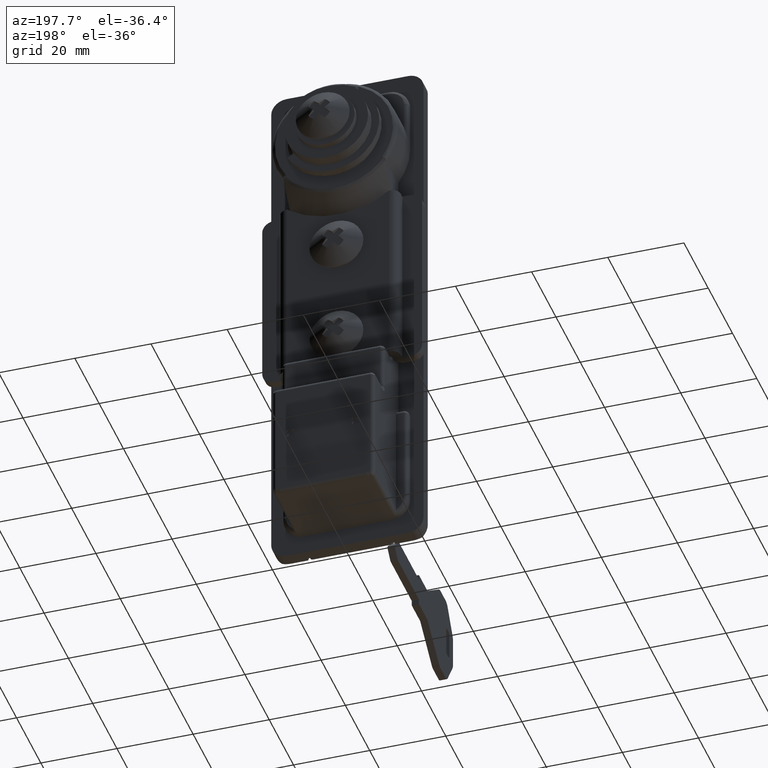
[diagram: clean part render]
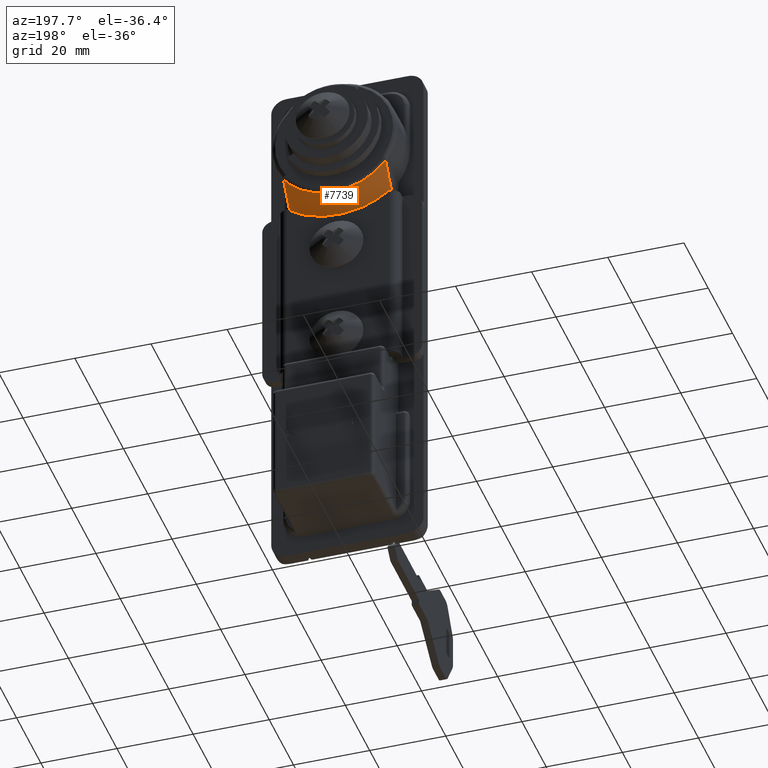
[diagram: same view with one face highlighted and labeled with its STEP entity id]
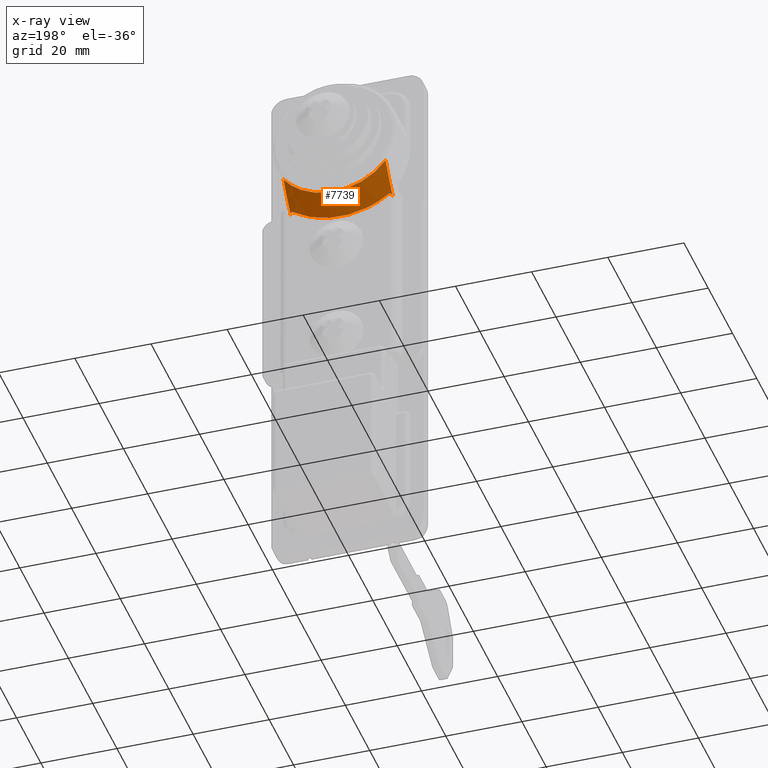
[diagram: x-ray of the same camera — body ghosted, the highlighted face saturated]
A machine part, auxiliary view. The second image highlights one B-rep face of the part: STEP entity #7739.
The next image is the same camera in x-ray: the body ghosted, the highlighted face saturated — about 0% of this face is hidden behind the body in this view.
In plain terms, the highlighted face is a freeform B-spline surface patch.
Its self-contained STEP definition (entity closure, byte-faithful):
#4096=CARTESIAN_POINT('',(5.500000000000000,13.400000000000141,-17.156414347120752));
#4097=VERTEX_POINT('',#4096);
#4103=CARTESIAN_POINT('',(6.500000000000000,12.400000000000199,-16.893358270042100));
#4104=VERTEX_POINT('',#4103);
#4105=CARTESIAN_POINT('',(6.500000000000000,12.400000000000199,-16.893358270042100));
#4106=CARTESIAN_POINT('',(6.499999999999999,12.460573286363759,-16.848896491696930));
#4107=CARTESIAN_POINT('',(6.494592710384143,12.522759479631720,-16.808204778307228));
#4108=CARTESIAN_POINT('',(6.476226226919340,12.619211065464500,-16.754502108410222));
#4109=CARTESIAN_POINT('',(6.468302465190980,12.652129500656590,-16.737736279526459));
#4110=CARTESIAN_POINT('',(6.448728232234273,12.717952340073060,-16.707793012662432));
#4111=CARTESIAN_POINT('',(6.437122398387714,12.750802640241631,-16.694613040432529));
#4112=CARTESIAN_POINT('',(6.409880314441782,12.816387674351430,-16.672278262638262));
#4113=CARTESIAN_POINT('',(6.394131173822889,12.849331025171020,-16.663078042897912));
#4114=CARTESIAN_POINT('',(6.358482375835842,12.914175978204350,-16.649589368036221));
#4115=CARTESIAN_POINT('',(6.319348843506730,12.976861437519510,-16.641195877414582));
#4116=CARTESIAN_POINT('',(6.273234109520970,13.035228425482360,-16.643149565359870));
#4117=CARTESIAN_POINT('',(6.223489226130293,13.091353368647971,-16.650546688825791));
#4118=CARTESIAN_POINT('',(6.197361680185288,13.117636002519459,-16.656905413388010));
#4119=CARTESIAN_POINT('',(6.143556592638629,13.166256913296280,-16.674307040852931));
#4120=CARTESIAN_POINT('',(6.115718375119708,13.188756597899900,-16.685389086905481));
#4121=CARTESIAN_POINT('',(6.058568934195304,13.230208909818851,-16.711877010054341));
#4122=CARTESIAN_POINT('',(6.029886110504806,13.248720230816319,-16.726980176537630));
#4123=CARTESIAN_POINT('',(5.972344611722654,13.282040751938039,-16.760302263052800));
#4124=CARTESIAN_POINT('',(5.943485620495222,13.296845330174760,-16.778524911967221));
#4125=CARTESIAN_POINT('',(5.885613592364966,13.323208101798130,-16.817702673506460));
#4126=CARTESIAN_POINT('',(5.856478321303036,13.334794583558910,-16.838762068288279));
#4127=CARTESIAN_POINT('',(5.770620583416208,13.364590756679130,-16.904254300822419));
#4128=CARTESIAN_POINT('',(5.714909527387732,13.378198053424560,-16.951273150547941));
#4129=CARTESIAN_POINT('',(5.605750181845946,13.395928931061430,-17.050338990717862));
#4130=CARTESIAN_POINT('',(5.552130961846017,13.400000000000500,-17.102603119915919));
#4131=CARTESIAN_POINT('',(5.500000000000000,13.400000000000141,-17.156414347120752));
#4132=B_SPLINE_CURVE_WITH_KNOTS('',3,(#4105,#4106,#4107,#4108,#4109,#4110,#4111,#4112,#4113,#4114,#4115,#4116,#4117,#4118,#4119,#4120,#4121,#4122,#4123,#4124,#4125,#4126,#4127,#4128,#4129,#4130,#4131),.UNSPECIFIED.,.F.,.U.,(4,2,2,2,2,1,2,2,2,2,2,2,2,4),(0.0,0.124999999999999,0.187499999999998,0.249999999999998,0.312499999999997,0.374999999999997,0.437499999999996,0.499999999999996,0.562499999999995,0.624999999999995,0.687499999999994,0.749999999999994,0.874999999999997,1.0),.UNSPECIFIED.);
#4133=EDGE_CURVE('',#4104,#4097,#4132,.T.);
#4403=CARTESIAN_POINT('',(5.500000000000000,-13.400000000000141,-17.156414347120649));
#4404=VERTEX_POINT('',#4403);
#4405=CARTESIAN_POINT('',(6.500000000000000,-12.400000000000141,-16.893358270042100));
#4406=VERTEX_POINT('',#4405);
#4407=CARTESIAN_POINT('',(5.500000000000000,-13.400000000000141,-17.156414347120649));
#4408=CARTESIAN_POINT('',(5.552081475391478,-13.400000000000141,-17.102654201411010));
#4409=CARTESIAN_POINT('',(5.605158161518392,-13.395974995171640,-17.050915183161411));
#4410=CARTESIAN_POINT('',(5.713740600542138,-13.378437215983199,-16.952295703970350));
#4411=CARTESIAN_POINT('',(5.769234808542663,-13.364969271795630,-16.905392209594080));
#4412=CARTESIAN_POINT('',(5.854931568637838,-13.335380591521259,-16.839903074620238));
#4413=CARTESIAN_POINT('',(5.884087572575291,-13.323846319982600,-16.818780850947000));
#4414=CARTESIAN_POINT('',(5.942122794745748,-13.297520317718980,-16.779404594446799));
#4415=CARTESIAN_POINT('',(5.971071612735336,-13.282724613025570,-16.761081657400101));
#4416=CARTESIAN_POINT('',(6.028811376579899,-13.249393745424280,-16.727562028869212));
#4417=CARTESIAN_POINT('',(6.057731717900007,-13.230768706913731,-16.712302474695559));
#4418=CARTESIAN_POINT('',(6.114815969611360,-13.189457178730819,-16.685771035199672));
#4419=CARTESIAN_POINT('',(6.142503716109792,-13.167129181404180,-16.674709488080360));
#4420=CARTESIAN_POINT('',(6.196046295020213,-13.118900383478380,-16.657271590381541));
#4421=CARTESIAN_POINT('',(6.221902217389406,-13.093001588955531,-16.650892804849232));
#4422=CARTESIAN_POINT('',(6.259152152278259,-13.051180860539599,-16.645193750057519));
#4423=CARTESIAN_POINT('',(6.271364966426447,-13.036670154115081,-16.643943809839310));
#4424=CARTESIAN_POINT('',(6.294729451546504,-13.007254391022061,-16.642825517018721));
#4425=CARTESIAN_POINT('',(6.305936956527765,-12.992294113643020,-16.642942847872281));
#4426=CARTESIAN_POINT('',(6.338172636192753,-12.946674868409721,-16.645259219218691));
#4427=CARTESIAN_POINT('',(6.357818256709647,-12.915279782323360,-16.649416740093411));
#4428=CARTESIAN_POINT('',(6.393507722183023,-12.850565606782050,-16.662766274817351));
#4429=CARTESIAN_POINT('',(6.409439008558358,-12.817367731493990,-16.671977961164099));
#4430=CARTESIAN_POINT('',(6.436892268698334,-12.751437064683440,-16.694364344396021));
#4431=CARTESIAN_POINT('',(6.448580708793843,-12.718412368442500,-16.707594041636241));
#4432=CARTESIAN_POINT('',(6.468280928881366,-12.652237666175409,-16.737676863254158));
#4433=CARTESIAN_POINT('',(6.476183745789383,-12.619400729232529,-16.754402518056398));
#4434=CARTESIAN_POINT('',(6.494570729989321,-12.522941470517210,-16.808091478391290));
#4435=CARTESIAN_POINT('',(6.499999999999997,-12.460685484813000,-16.848814136208450));
#4436=CARTESIAN_POINT('',(6.500000000000000,-12.400000000000141,-16.893358270042050));
#4437=B_SPLINE_CURVE_WITH_KNOTS('',3,(#4407,#4408,#4409,#4410,#4411,#4412,#4413,#4414,#4415,#4416,#4417,#4418,#4419,#4420,#4421,#4422,#4423,#4424,#4425,#4426,#4427,#4428,#4429,#4430,#4431,#4432,#4433,#4434,#4435,#4436),.UNSPECIFIED.,.F.,.U.,(4,2,2,2,2,2,2,2,2,2,2,2,2,2,4),(0.0,0.124999999999998,0.249999999999996,0.312499999999998,0.374999999999999,0.437500000000000,0.500000000000002,0.562500000000003,0.593750000000003,0.625000000000003,0.687500000000002,0.750000000000002,0.812500000000001,0.875000000000001,1.0),.UNSPECIFIED.);
#4438=EDGE_CURVE('',#4404,#4406,#4437,.T.);
#4817=CARTESIAN_POINT('',(11.631061178545661,-13.400000000000141,-10.102688974386760));
#4818=VERTEX_POINT('',#4817);
#4830=CARTESIAN_POINT('',(11.631061178561099,13.400000000000141,-10.102688974365879));
#4831=VERTEX_POINT('',#4830);
#4832=CARTESIAN_POINT('',(11.631061178561099,13.400000000000141,-10.102688974365879));
#4833=CARTESIAN_POINT('',(11.631061178560721,12.767501566690170,-10.941807381729040));
#4834=CARTESIAN_POINT('',(11.631061178559930,11.453619175234291,-12.380665349334681));
#4835=CARTESIAN_POINT('',(11.631061178558790,9.399751716190949,-13.966331071756191));
#4836=CARTESIAN_POINT('',(11.631061178557410,7.151556622103217,-15.254134673889331));
#4837=CARTESIAN_POINT('',(11.631061178555900,4.349311972098445,-16.336395447132741));
#4838=CARTESIAN_POINT('',(11.631061178553850,1.055141335823003,-16.864356090292620));
#4839=CARTESIAN_POINT('',(11.631061178552081,-2.187195328914543,-16.723536002859529));
#4840=CARTESIAN_POINT('',(11.631061178550350,-5.198190606677879,-16.060607016117590));
#4841=CARTESIAN_POINT('',(11.631061178548849,-7.812153535182589,-14.941215931735901));
#4842=CARTESIAN_POINT('',(11.631061178547140,-10.743171747023080,-13.059381603663050));
#4843=CARTESIAN_POINT('',(11.631061178546251,-12.427326570362011,-11.394065125229790));
#4844=CARTESIAN_POINT('',(11.631061178545661,-13.400000000000141,-10.102688974386760));
#4845=B_SPLINE_CURVE_WITH_KNOTS('',3,(#4832,#4833,#4834,#4835,#4836,#4837,#4838,#4839,#4840,#4841,#4842,#4843,#4844),.UNSPECIFIED.,.F.,.U.,(4,1,1,1,1,1,1,1,1,1,4),(0.000000083768345,3.152397710669447,5.819821754122259,7.759771679514625,10.912213880935671,14.792098660546570,17.701931701963471,20.611871837453119,24.006794648435228,26.189252140099121,31.039085422078429),.UNSPECIFIED.);
#4846=EDGE_CURVE('',#4831,#4818,#4845,.T.);
#7465=CARTESIAN_POINT('',(6.500000000000000,-12.400000000000141,-16.893358270042100));
#7466=CARTESIAN_POINT('',(6.499999999999982,-11.230134087463931,-17.752250421106289));
#7467=CARTESIAN_POINT('',(6.500000000000029,-8.591150395633227,-19.295927523568260));
#7468=CARTESIAN_POINT('',(6.499999999999996,-4.552521705526794,-20.596981527190930));
#7469=CARTESIAN_POINT('',(6.500000000000003,-0.693709904537354,-21.037643114512541));
#7470=CARTESIAN_POINT('',(6.499999999999997,3.045359958440707,-20.852672069504571));
#7471=CARTESIAN_POINT('',(6.499999999999994,6.290779340316425,-20.084239160893720));
#7472=CARTESIAN_POINT('',(6.500000000000033,9.554435224250558,-18.739453736618088));
#7473=CARTESIAN_POINT('',(6.499999999999940,11.341554448467640,-17.670463734134330));
#7474=CARTESIAN_POINT('',(6.500000000000000,12.400000000000199,-16.893358270042100));
#7475=B_SPLINE_CURVE_WITH_KNOTS('',3,(#7465,#7466,#7467,#7468,#7469,#7470,#7471,#7472,#7473,#7474),.UNSPECIFIED.,.F.,.U.,(4,1,1,1,1,1,1,4),(0.000000100644264,4.353926606283906,9.122543133801901,12.647180840198370,15.964399741082349,20.318334125270720,22.598990309124609,26.538231727708400),.UNSPECIFIED.);
#7476=EDGE_CURVE('',#4406,#4104,#7475,.T.);
#7570=CARTESIAN_POINT('',(5.500000000000000,13.400000000000141,-17.156414347120752));
#7571=CARTESIAN_POINT('',(5.771736070378990,13.400000000000141,-16.875919782998789));
#7572=CARTESIAN_POINT('',(6.042230990898537,13.400000000000141,-16.594104595777239));
#7573=CARTESIAN_POINT('',(6.580415215650183,13.400000000000141,-16.027488955977589));
#7574=CARTESIAN_POINT('',(6.848197219938563,13.400000000000141,-15.742588886164700));
#7575=CARTESIAN_POINT('',(7.645952970354312,13.400000000000141,-14.883675680815710));
#7576=CARTESIAN_POINT('',(8.170344445764648,13.400000000000141,-14.305539933003431));
#7577=CARTESIAN_POINT('',(9.199801859607401,13.400000000000141,-13.134923072018729));
#7578=CARTESIAN_POINT('',(9.704896110182919,13.400000000000141,-12.542462974978360));
#7579=CARTESIAN_POINT('',(10.689467570010500,13.400000000000141,-11.338527225591200));
#7580=CARTESIAN_POINT('',(11.168994059851009,13.400000000000141,-10.727088154274311));
#7581=CARTESIAN_POINT('',(11.631061178561099,13.400000000000141,-10.102688974365879));
#7582=B_SPLINE_CURVE_WITH_KNOTS('',3,(#7570,#7571,#7572,#7573,#7574,#7575,#7576,#7577,#7578,#7579,#7580,#7581),.UNSPECIFIED.,.F.,.U.,(4,2,2,2,2,4),(0.0,0.125000000000000,0.250000000000000,0.500000000000000,0.750000000000000,1.0),.UNSPECIFIED.);
#7583=EDGE_CURVE('',#4097,#4831,#7582,.T.);
#7602=CARTESIAN_POINT('',(11.631061178545661,-13.400000000000141,-10.102688974386760));
#7603=CARTESIAN_POINT('',(11.168994059836461,-13.400000000000141,-10.727088154293160));
#7604=CARTESIAN_POINT('',(10.689467569997010,-13.400000000000141,-11.338527225608120));
#7605=CARTESIAN_POINT('',(9.704896110171745,-13.400000000000141,-12.542462974991601));
#7606=CARTESIAN_POINT('',(9.199801859597494,-13.400000000000141,-13.134923072030199));
#7607=CARTESIAN_POINT('',(8.170344445757397,-13.400000000000141,-14.305539933011470));
#7608=CARTESIAN_POINT('',(7.645952970348460,-13.400000000000141,-14.883675680822090));
#7609=CARTESIAN_POINT('',(6.848197219934879,-13.400000000000141,-15.742588886168630));
#7610=CARTESIAN_POINT('',(6.580415215647228,-13.400000000000141,-16.027488955980719));
#7611=CARTESIAN_POINT('',(6.042230990897071,-13.400000000000141,-16.594104595778781));
#7612=CARTESIAN_POINT('',(5.771736070378276,-13.400000000000141,-16.875919782999521));
#7613=CARTESIAN_POINT('',(5.500000000000000,-13.400000000000141,-17.156414347120649));
#7614=B_SPLINE_CURVE_WITH_KNOTS('',3,(#7602,#7603,#7604,#7605,#7606,#7607,#7608,#7609,#7610,#7611,#7612,#7613),.UNSPECIFIED.,.F.,.U.,(4,2,2,2,2,4),(0.0,0.250000000000000,0.500000000000000,0.750000000000000,0.875000000000000,1.0),.UNSPECIFIED.);
#7615=EDGE_CURVE('',#4818,#4404,#7614,.T.);
#7717=CARTESIAN_POINT('',(11.784337708025131,-13.562123550539191,-9.670761831980977));
#7718=CARTESIAN_POINT('',(5.342891557299372,-17.828646569959350,-12.713097187334400));
#7719=CARTESIAN_POINT('',(11.784337708025127,0.249155683482147,-29.039481547873805));
#7720=CARTESIAN_POINT('',(5.342891557299373,0.327537837651039,-38.175043249131463));
#7721=CARTESIAN_POINT('',(11.784337708025131,13.726062971446369,-9.436632074785933));
#7722=CARTESIAN_POINT('',(5.342891557299372,18.044159869432399,-12.405312298265541));
#7730=(BOUNDED_SURFACE()B_SPLINE_SURFACE(1,2,((#7717,#7719,#7721),(#7718,#7720,#7722)),.UNSPECIFIED.,.F.,.F.,.U.)B_SPLINE_SURFACE_WITH_KNOTS((2,2),(3,3),(0.0,8.303689035746414),(0.0,45.595658357970173),.UNSPECIFIED.)GEOMETRIC_REPRESENTATION_ITEM()RATIONAL_B_SPLINE_SURFACE(((1.0,0.573576436351046,1.0),(1.0,0.573576436351046,1.0)))REPRESENTATION_ITEM('')SURFACE());
#7731=ORIENTED_EDGE('',*,*,#7583,.T.);
#7732=ORIENTED_EDGE('',*,*,#4846,.T.);
#7733=ORIENTED_EDGE('',*,*,#7615,.T.);
#7734=ORIENTED_EDGE('',*,*,#4438,.T.);
#7735=ORIENTED_EDGE('',*,*,#7476,.T.);
#7736=ORIENTED_EDGE('',*,*,#4133,.T.);
#7737=EDGE_LOOP('',(#7731,#7732,#7733,#7734,#7735,#7736));
#7738=FACE_OUTER_BOUND('',#7737,.T.);
#7739=ADVANCED_FACE('',(#7738),#7730,.T.);